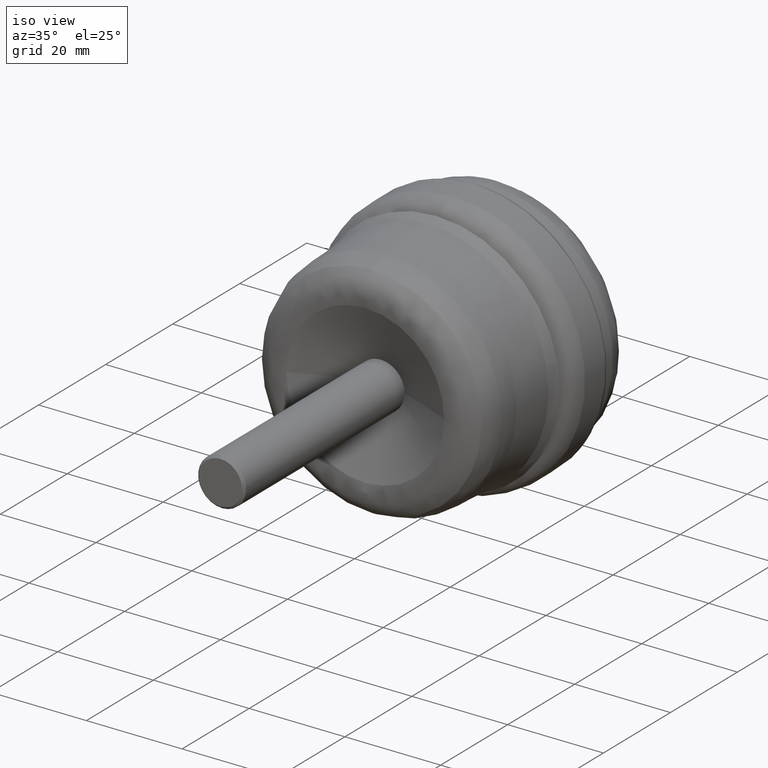
[diagram: clean part render]
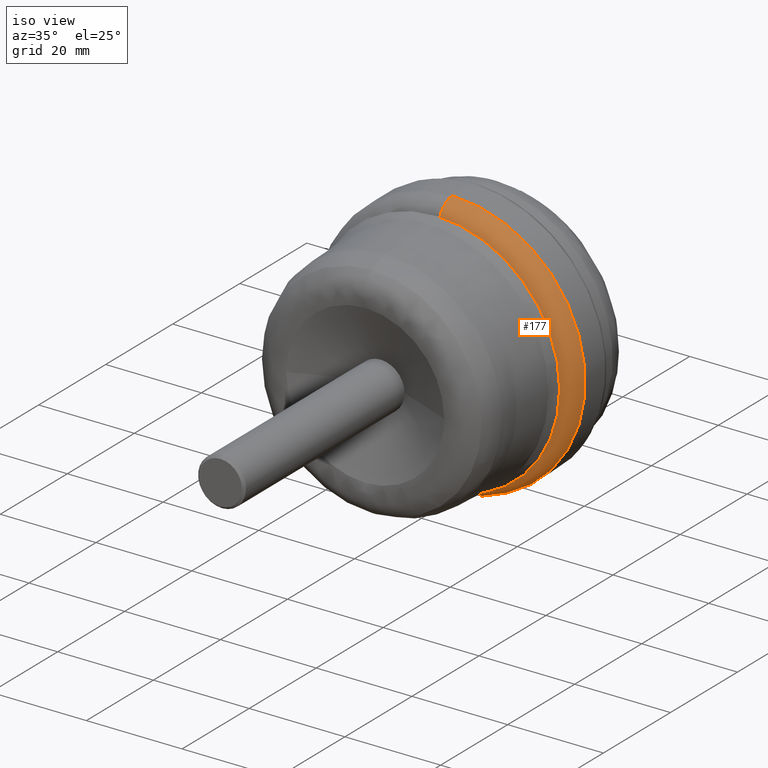
[diagram: same view with one face highlighted and labeled with its STEP entity id]
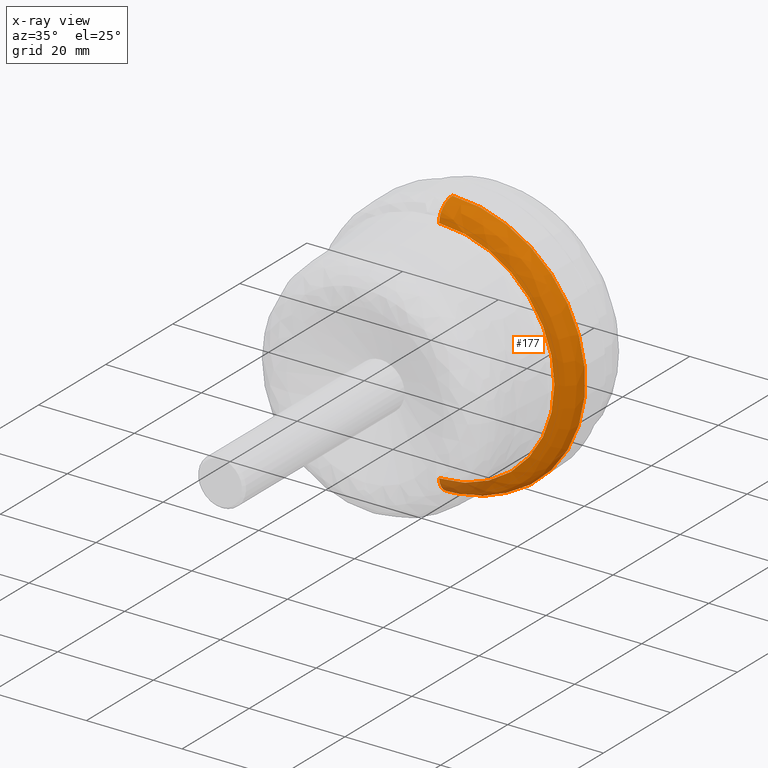
[diagram: x-ray of the same camera — body ghosted, the highlighted face saturated]
A machine part, iso view. The second image highlights one B-rep face of the part: STEP entity #177.
The next image is the same camera in x-ray: the body ghosted, the highlighted face saturated — about 5% of this face is hidden behind the body in this view.
In plain terms, the highlighted face is a freeform B-spline surface patch.
Its self-contained STEP definition (entity closure, byte-faithful):
#10 = ORIENTED_EDGE ( 'NONE', *, *, #135, .T. ) ;
#56 = AXIS2_PLACEMENT_3D ( 'NONE', #395, #1415, #1574 ) ;
#97 = DIRECTION ( 'NONE',  ( 1.224646799147353454E-16, 0.0000000000000000000, 1.000000000000000000 ) ) ;
#135 = EDGE_CURVE ( 'NONE', #908, #1329, #1493, .T. ) ;
#142 = CARTESIAN_POINT ( 'NONE',  ( 24.09207305389813314, 65.21465358772955767, 0.0000000000000000000 ) ) ;
#145 = CARTESIAN_POINT ( 'NONE',  ( 55.49999999999998579, 67.01294116382331367, -27.75000000000000000 ) ) ;
#158 = VERTEX_POINT ( 'NONE', #840 ) ;
#177 = ADVANCED_FACE ( 'NONE', ( #876 ), #1776, .T. ) ;
#189 = DIRECTION ( 'NONE',  ( -0.0000000000000000000, -1.000000000000000000, -0.0000000000000000000 ) ) ;
#194 = CARTESIAN_POINT ( 'NONE',  ( 0.0000000000000000000, 65.21465358772955767, 0.0000000000000000000 ) ) ;
#210 = CIRCLE ( 'NONE', #56, 24.09207305389813314 ) ;
#217 = DIRECTION ( 'NONE',  ( 0.0000000000000000000, 0.0000000000000000000, -1.000000000000000000 ) ) ;
#265 = VERTEX_POINT ( 'NONE', #142 ) ;
#279 = CARTESIAN_POINT ( 'NONE',  ( 0.0000000000000000000, 67.01294116382329946, -27.75000000000000000 ) ) ;
#351 = CARTESIAN_POINT ( 'NONE',  ( 0.0000000000000000000, 69.20000000000000284, -23.75000000000000000 ) ) ;
#379 = EDGE_LOOP ( 'NONE', ( #1015, #1486, #976, #1737, #10 ) ) ;
#395 = CARTESIAN_POINT ( 'NONE',  ( 0.0000000000000000000, 65.21465358772955767, 0.0000000000000000000 ) ) ;
#408 = CARTESIAN_POINT ( 'NONE',  ( 0.0000000000000000000, 69.20000000000000284, 0.0000000000000000000 ) ) ;
#413 = CARTESIAN_POINT ( 'NONE',  ( 48.18414610779625917, 65.21465358772955767, 24.09207305389812959 ) ) ;
#449 = CIRCLE ( 'NONE', #1811, 24.09207305389813314 ) ;
#466 = CIRCLE ( 'NONE', #522, 4.000000000000003553 ) ;
#469 = DIRECTION ( 'NONE',  ( 0.0000000000000000000, 0.0000000000000000000, -1.000000000000000000 ) ) ;
#494 = VERTEX_POINT ( 'NONE', #1683 ) ;
#522 = AXIS2_PLACEMENT_3D ( 'NONE', #837, #1136, #97 ) ;
#534 = CIRCLE ( 'NONE', #866, 4.000000000000003553 ) ;
#537 = DIRECTION ( 'NONE',  ( 0.0000000000000000000, 0.0000000000000000000, -1.000000000000000000 ) ) ;
#553 = CARTESIAN_POINT ( 'NONE',  ( 3.398394867633905883E-15, 69.20000000000000284, 27.75000000000000355 ) ) ;
#570 = CARTESIAN_POINT ( 'NONE',  ( 55.49999999999999289, 69.20000000000000284, -27.75000000000000355 ) ) ;
#613 = EDGE_CURVE ( 'NONE', #494, #265, #210, .T. ) ;
#707 = DIRECTION ( 'NONE',  ( -0.0000000000000000000, -1.000000000000000000, -0.0000000000000000000 ) ) ;
#720 = CARTESIAN_POINT ( 'NONE',  ( 3.217284280424585556E-15, 65.40168706151602862, 26.27111982544341728 ) ) ;
#837 = CARTESIAN_POINT ( 'NONE',  ( 2.908536147974964107E-15, 69.20000000000000284, 23.75000000000000000 ) ) ;
#840 = CARTESIAN_POINT ( 'NONE',  ( 3.174411441330980301E-15, 65.21465358772955767, 24.09207305389813314 ) ) ;
#851 = CARTESIAN_POINT ( 'NONE',  ( 0.0000000000000000000, 65.21465358772955767, -24.09207305389813314 ) ) ;
#866 = AXIS2_PLACEMENT_3D ( 'NONE', #351, #1384, #217 ) ;
#875 = CARTESIAN_POINT ( 'NONE',  ( 55.49999999999998579, 67.01294116382331367, 27.74999999999999289 ) ) ;
#876 = FACE_OUTER_BOUND ( 'NONE', #379, .T. ) ;
#880 = CARTESIAN_POINT ( 'NONE',  ( 3.398394867633905883E-15, 69.20000000000000284, 27.75000000000000355 ) ) ;
#908 = VERTEX_POINT ( 'NONE', #1218 ) ;
#909 = EDGE_CURVE ( 'NONE', #494, #908, #534, .T. ) ;
#954 = AXIS2_PLACEMENT_3D ( 'NONE', #408, #707, #537 ) ;
#976 = ORIENTED_EDGE ( 'NONE', *, *, #613, .F. ) ;
#1015 = ORIENTED_EDGE ( 'NONE', *, *, #1170, .F. ) ;
#1029 = CARTESIAN_POINT ( 'NONE',  ( 52.54223965088682036, 65.40168706151602862, 26.27111982544341018 ) ) ;
#1136 = DIRECTION ( 'NONE',  ( -1.000000000000000000, 0.0000000000000000000, 1.224646799147353207E-16 ) ) ;
#1155 = CARTESIAN_POINT ( 'NONE',  ( 52.54223965088682036, 65.40168706151602862, -26.27111982544341728 ) ) ;
#1170 = EDGE_CURVE ( 'NONE', #158, #1329, #466, .T. ) ;
#1173 = CARTESIAN_POINT ( 'NONE',  ( 0.0000000000000000000, 69.20000000000000284, -27.75000000000000355 ) ) ;
#1218 = CARTESIAN_POINT ( 'NONE',  ( 0.0000000000000000000, 69.20000000000000284, -27.75000000000000355 ) ) ;
#1297 = CARTESIAN_POINT ( 'NONE',  ( 48.18414610779625917, 65.21465358772955767, -24.09207305389813669 ) ) ;
#1310 = CARTESIAN_POINT ( 'NONE',  ( 3.398394867633905489E-15, 67.01294116382329946, 27.75000000000000000 ) ) ;
#1329 = VERTEX_POINT ( 'NONE', #553 ) ;
#1384 = DIRECTION ( 'NONE',  ( 1.000000000000000000, 0.0000000000000000000, 0.0000000000000000000 ) ) ;
#1415 = DIRECTION ( 'NONE',  ( -0.0000000000000000000, -1.000000000000000000, -0.0000000000000000000 ) ) ;
#1435 = EDGE_CURVE ( 'NONE', #265, #158, #449, .T. ) ;
#1438 = CARTESIAN_POINT ( 'NONE',  ( 2.950428015028054718E-15, 65.21465358772955767, 24.09207305389813314 ) ) ;
#1486 = ORIENTED_EDGE ( 'NONE', *, *, #1435, .F. ) ;
#1493 = CIRCLE ( 'NONE', #954, 27.75000000000000355 ) ;
#1574 = DIRECTION ( 'NONE',  ( 0.0000000000000000000, 0.0000000000000000000, -1.000000000000000000 ) ) ;
#1579 = CARTESIAN_POINT ( 'NONE',  ( 0.0000000000000000000, 65.40168706151602862, -26.27111982544341728 ) ) ;
#1596 = CARTESIAN_POINT ( 'NONE',  ( 55.49999999999999289, 69.20000000000000284, 27.74999999999999645 ) ) ;
#1683 = CARTESIAN_POINT ( 'NONE',  ( 0.0000000000000000000, 65.21465358772955767, -24.09207305389813314 ) ) ;
#1737 = ORIENTED_EDGE ( 'NONE', *, *, #909, .T. ) ;
#1776 =( BOUNDED_SURFACE ( )  B_SPLINE_SURFACE ( 3, 3, ( 
 ( #851, #1297, #413, #1438 ),
 ( #1579, #1155, #1029, #720 ),
 ( #279, #145, #875, #1310 ),
 ( #1173, #570, #1596, #880 ) ),
 .UNSPECIFIED., .F., .F., .T. ) 
 B_SPLINE_SURFACE_WITH_KNOTS ( ( 4, 4 ),
 ( 4, 4 ),
 ( 0.0000000000000000000, 1.000000000000000000 ),
 ( 0.0000000000000000000, 1.000000000000000000 ),
 .UNSPECIFIED. ) 
 GEOMETRIC_REPRESENTATION_ITEM ( )  RATIONAL_B_SPLINE_SURFACE ( (
 ( 1.000000000000000000, 0.3333333333333334259, 0.3333333333333334259, 1.000000000000000000),
 ( 0.8244812548112916417, 0.2748270849370972879, 0.2748270849370972879, 0.8244812548112916417),
 ( 0.8244812548112916417, 0.2748270849370972879, 0.2748270849370972879, 0.8244812548112916417),
 ( 1.000000000000000000, 0.3333333333333334259, 0.3333333333333334259, 1.000000000000000000) ) ) 
 REPRESENTATION_ITEM ( '' )  SURFACE ( )  );
#1811 = AXIS2_PLACEMENT_3D ( 'NONE', #194, #189, #469 ) ;